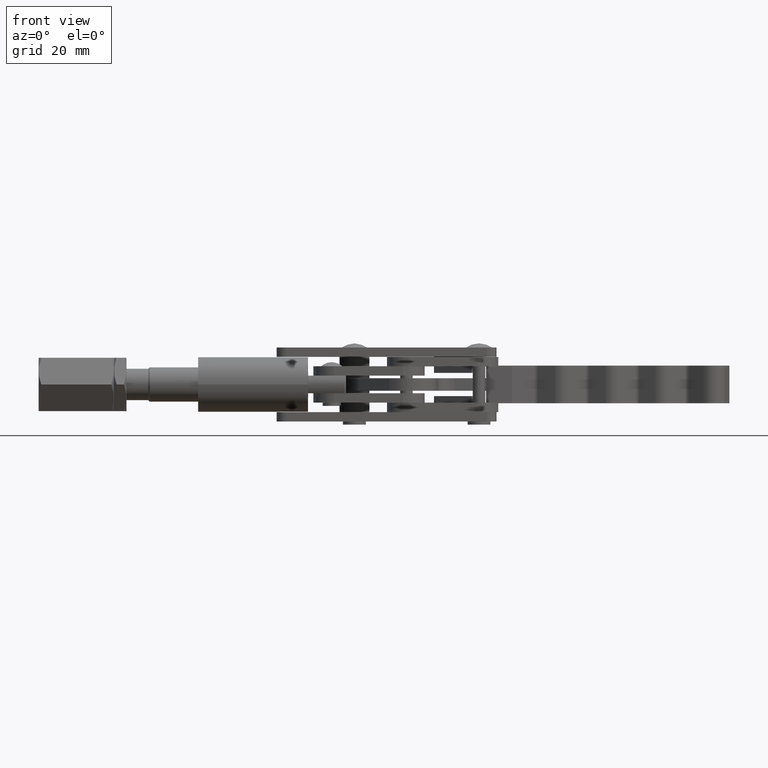
[diagram: clean part render]
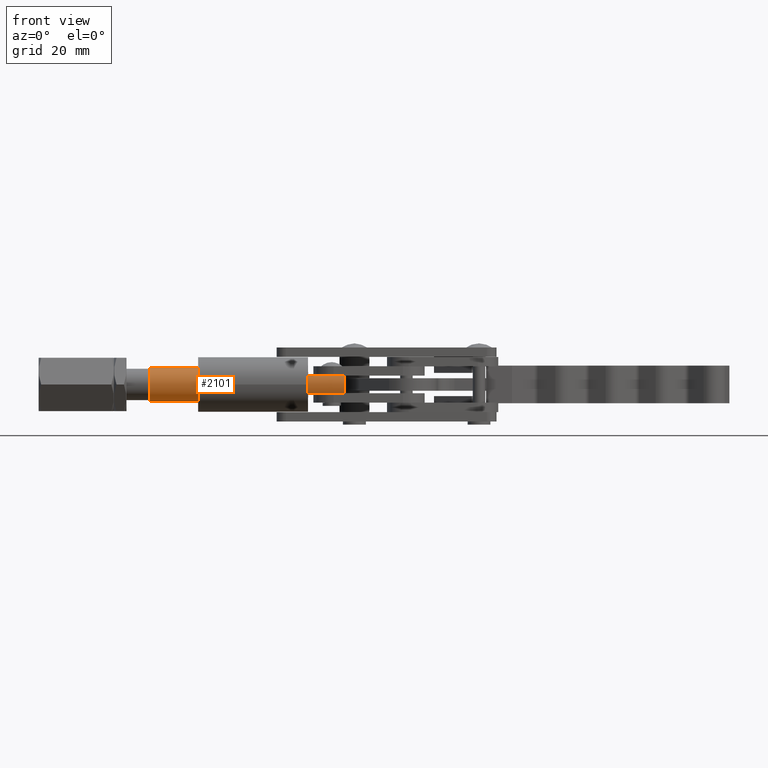
[diagram: same view with one face highlighted and labeled with its STEP entity id]
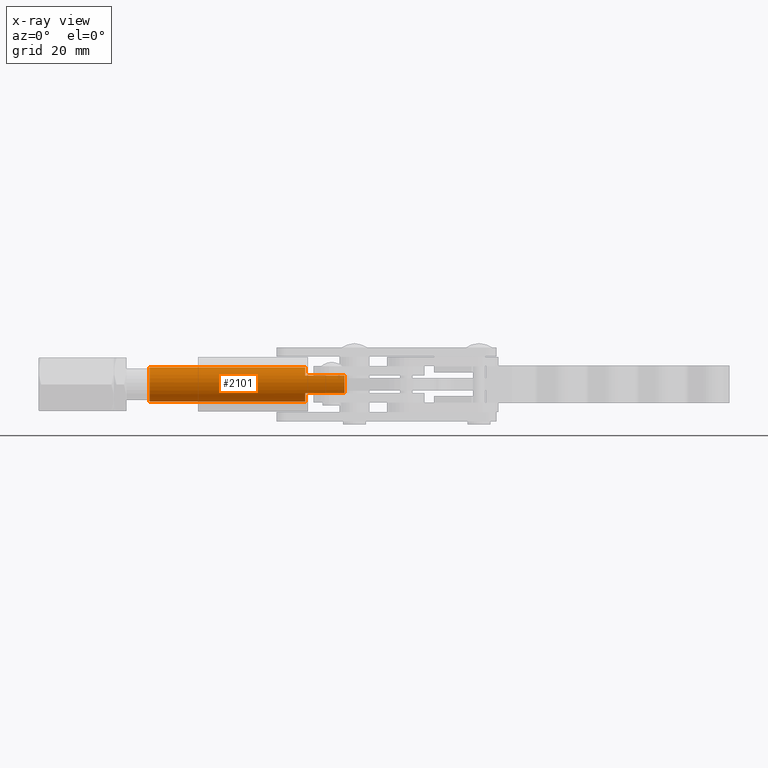
[diagram: x-ray of the same camera — body ghosted, the highlighted face saturated]
A machine part, front view. The second image highlights one B-rep face of the part: STEP entity #2101.
The next image is the same camera in x-ray: the body ghosted, the highlighted face saturated — about 0% of this face is hidden behind the body in this view.
In plain terms, the highlighted cylindrical surface (edge-blend (fillet) strip) has radius 5.45 mm, axis along (-1, 0.0028, -0).
Its self-contained STEP definition (entity closure, byte-faithful):
#189 = AXIS2_PLACEMENT_3D ( 'NONE', #5395, #4567, #6587 ) ;
#256 = EDGE_CURVE ( 'NONE', #5867, #3065, #1974, .T. ) ;
#266 = DIRECTION ( 'NONE',  ( -1.000000000000000000, -0.0000000000000000000, -0.0000000000000000000 ) ) ;
#479 = CARTESIAN_POINT ( 'NONE',  ( 21.99363924338976200, 16.82426476369759500, -8.970000000000002400 ) ) ;
#579 = DIRECTION ( 'NONE',  ( 0.0000000000000000000, 0.0000000000000000000, 1.000000000000000000 ) ) ;
#633 = CARTESIAN_POINT ( 'NONE',  ( 8.993639243389765200, 21.50000000000001100, -6.320000000000002900 ) ) ;
#769 = DIRECTION ( 'NONE',  ( -1.000000000000000000, -0.0000000000000000000, -0.0000000000000000000 ) ) ;
#770 = ORIENTED_EDGE ( 'NONE', *, *, #2268, .T. ) ;
#831 = ORIENTED_EDGE ( 'NONE', *, *, #256, .T. ) ;
#1107 = CARTESIAN_POINT ( 'NONE',  ( 21.99363924338976200, 21.50000000000001100, -17.22000000000000200 ) ) ;
#1113 = DIRECTION ( 'NONE',  ( -1.000000000000000000, -0.0000000000000000000, -0.0000000000000000000 ) ) ;
#1121 = LINE ( 'NONE', #479, #4078 ) ;
#1190 = AXIS2_PLACEMENT_3D ( 'NONE', #7411, #6007, #579 ) ;
#1266 = CARTESIAN_POINT ( 'NONE',  ( 21.49363924338974700, 16.82426476369759500, -8.970000000000002400 ) ) ;
#1417 = VERTEX_POINT ( 'NONE', #7018 ) ;
#1451 = VECTOR ( 'NONE', #5843, 1000.000000000000000 ) ;
#1508 = CARTESIAN_POINT ( 'NONE',  ( 8.993639243389765200, 21.50000000000001100, -17.22000000000000200 ) ) ;
#1538 = VECTOR ( 'NONE', #2934, 1000.000000000000000 ) ;
#1641 = VERTEX_POINT ( 'NONE', #2594 ) ;
#1974 = CIRCLE ( 'NONE', #3950, 5.450000000000000200 ) ;
#2101 = ADVANCED_FACE ( 'NONE', ( #7068 ), #6638, .T. ) ;
#2165 = DIRECTION ( 'NONE',  ( 0.0000000000000000000, 0.0000000000000000000, -1.000000000000000000 ) ) ;
#2168 = CARTESIAN_POINT ( 'NONE',  ( 21.49363924338974700, 16.82426476369759500, -14.57000000000000400 ) ) ;
#2268 = EDGE_CURVE ( 'NONE', #3065, #1417, #1121, .T. ) ;
#2594 = CARTESIAN_POINT ( 'NONE',  ( 8.993639243389765200, 16.82426476369759500, -14.57000000000000400 ) ) ;
#2934 = DIRECTION ( 'NONE',  ( -1.000000000000000000, -0.0000000000000000000, -0.0000000000000000000 ) ) ;
#2971 = EDGE_CURVE ( 'NONE', #1641, #5867, #3692, .T. ) ;
#3065 = VERTEX_POINT ( 'NONE', #1266 ) ;
#3119 = CARTESIAN_POINT ( 'NONE',  ( 21.49363924338974700, 21.50000000000001100, -11.77000000000000300 ) ) ;
#3127 = CARTESIAN_POINT ( 'NONE',  ( 21.99363924338976200, 21.50000000000001100, -11.77000000000000300 ) ) ;
#3316 = AXIS2_PLACEMENT_3D ( 'NONE', #3633, #5863, #7510 ) ;
#3380 = LINE ( 'NONE', #1107, #6407 ) ;
#3394 = ORIENTED_EDGE ( 'NONE', *, *, #4201, .F. ) ;
#3398 = ORIENTED_EDGE ( 'NONE', *, *, #2971, .T. ) ;
#3492 = EDGE_CURVE ( 'NONE', #1417, #6493, #5862, .T. ) ;
#3530 = EDGE_CURVE ( 'NONE', #6493, #4059, #4363, .T. ) ;
#3633 = CARTESIAN_POINT ( 'NONE',  ( 8.993639243389765200, 21.50000000000001100, -11.77000000000000300 ) ) ;
#3659 = AXIS2_PLACEMENT_3D ( 'NONE', #3127, #266, #7245 ) ;
#3692 = LINE ( 'NONE', #6373, #1451 ) ;
#3950 = AXIS2_PLACEMENT_3D ( 'NONE', #3119, #4896, #2165 ) ;
#4059 = VERTEX_POINT ( 'NONE', #5353 ) ;
#4078 = VECTOR ( 'NONE', #769, 1000.000000000000000 ) ;
#4185 = EDGE_CURVE ( 'NONE', #4059, #4341, #4470, .T. ) ;
#4201 = EDGE_CURVE ( 'NONE', #7655, #4341, #3380, .T. ) ;
#4341 = VERTEX_POINT ( 'NONE', #6910 ) ;
#4363 = LINE ( 'NONE', #6881, #1538 ) ;
#4470 = CIRCLE ( 'NONE', #189, 5.450000000000000200 ) ;
#4567 = DIRECTION ( 'NONE',  ( 1.000000000000000000, -0.0000000000000000000, -0.0000000000000000000 ) ) ;
#4650 = ORIENTED_EDGE ( 'NONE', *, *, #4185, .T. ) ;
#4683 = CIRCLE ( 'NONE', #3316, 5.450000000000000200 ) ;
#4896 = DIRECTION ( 'NONE',  ( -1.000000000000000000, 0.0000000000000000000, 0.0000000000000000000 ) ) ;
#5294 = EDGE_LOOP ( 'NONE', ( #3394, #6880, #3398, #831, #770, #7176, #5504, #4650 ) ) ;
#5353 = CARTESIAN_POINT ( 'NONE',  ( -40.60636075661022900, 21.50000000000001100, -6.320000000000002900 ) ) ;
#5395 = CARTESIAN_POINT ( 'NONE',  ( -40.60636075661022900, 21.50000000000001100, -11.77000000000000300 ) ) ;
#5504 = ORIENTED_EDGE ( 'NONE', *, *, #3530, .T. ) ;
#5843 = DIRECTION ( 'NONE',  ( 1.000000000000000000, 0.0000000000000000000, 0.0000000000000000000 ) ) ;
#5862 = CIRCLE ( 'NONE', #1190, 5.450000000000000200 ) ;
#5863 = DIRECTION ( 'NONE',  ( -1.000000000000000000, 0.0000000000000000000, 0.0000000000000000000 ) ) ;
#5867 = VERTEX_POINT ( 'NONE', #2168 ) ;
#6007 = DIRECTION ( 'NONE',  ( -1.000000000000000000, 0.0000000000000000000, 0.0000000000000000000 ) ) ;
#6373 = CARTESIAN_POINT ( 'NONE',  ( 21.99363924338976200, 16.82426476369759500, -14.57000000000000400 ) ) ;
#6407 = VECTOR ( 'NONE', #1113, 1000.000000000000000 ) ;
#6493 = VERTEX_POINT ( 'NONE', #633 ) ;
#6587 = DIRECTION ( 'NONE',  ( 0.0000000000000000000, 0.0000000000000000000, -1.000000000000000000 ) ) ;
#6638 = CYLINDRICAL_SURFACE ( 'NONE', #3659, 5.450000000000000200 ) ;
#6880 = ORIENTED_EDGE ( 'NONE', *, *, #7350, .T. ) ;
#6881 = CARTESIAN_POINT ( 'NONE',  ( 21.99363924338976200, 21.50000000000001100, -6.320000000000002900 ) ) ;
#6910 = CARTESIAN_POINT ( 'NONE',  ( -40.60636075661022900, 21.50000000000001100, -17.22000000000000200 ) ) ;
#7018 = CARTESIAN_POINT ( 'NONE',  ( 8.993639243389765200, 16.82426476369759500, -8.970000000000002400 ) ) ;
#7068 = FACE_OUTER_BOUND ( 'NONE', #5294, .T. ) ;
#7176 = ORIENTED_EDGE ( 'NONE', *, *, #3492, .T. ) ;
#7245 = DIRECTION ( 'NONE',  ( 0.0000000000000000000, 0.0000000000000000000, 1.000000000000000000 ) ) ;
#7350 = EDGE_CURVE ( 'NONE', #7655, #1641, #4683, .T. ) ;
#7411 = CARTESIAN_POINT ( 'NONE',  ( 8.993639243389765200, 21.50000000000001100, -11.77000000000000300 ) ) ;
#7510 = DIRECTION ( 'NONE',  ( 0.0000000000000000000, 0.0000000000000000000, 1.000000000000000000 ) ) ;
#7655 = VERTEX_POINT ( 'NONE', #1508 ) ;